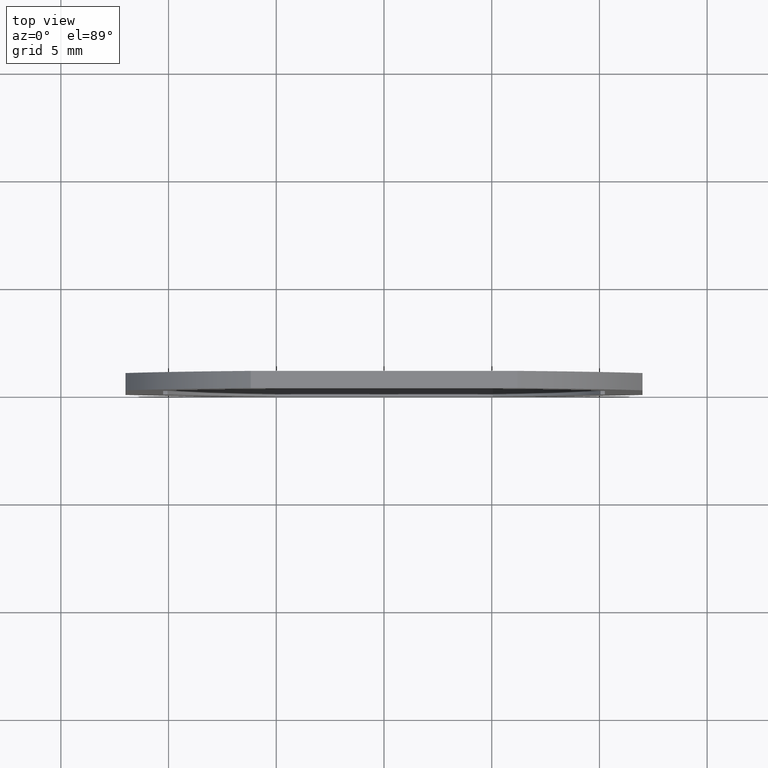
[diagram: clean part render]
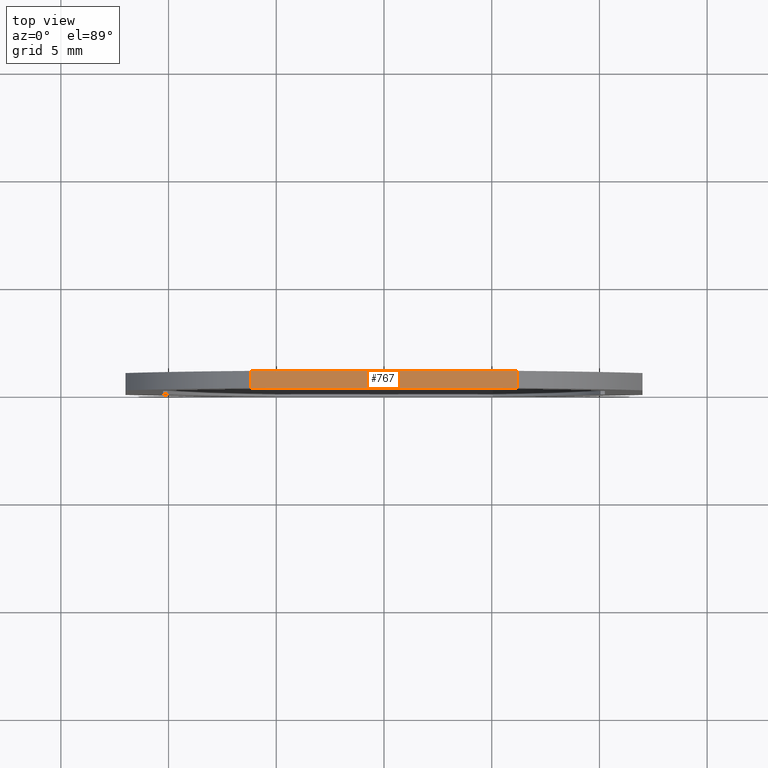
[diagram: same view with one face highlighted and labeled with its STEP entity id]
A machine part, top view. The second image highlights one B-rep face of the part: STEP entity #767.
In plain terms, the highlighted face is a freeform B-spline surface patch.
Its self-contained STEP definition (entity closure, byte-faithful):
#49=CARTESIAN_POINT('',(-6.184658732181810,0.0,12.000000569969499));
#50=VERTEX_POINT('',#49);
#51=CARTESIAN_POINT('',(6.184658732181830,0.0,12.000000569969499));
#52=VERTEX_POINT('',#51);
#53=CARTESIAN_POINT('',(-6.184658732181810,0.0,12.000000569969499));
#54=CARTESIAN_POINT('',(6.184658732181830,0.0,12.000000569969499));
#55=QUASI_UNIFORM_CURVE('',1,(#53,#54),.UNSPECIFIED.,.F.,.U.);
#56=EDGE_CURVE('',#50,#52,#55,.T.);
#319=CARTESIAN_POINT('',(-6.184658732181810,0.800000000000023,12.000000569969499));
#320=VERTEX_POINT('',#319);
#321=CARTESIAN_POINT('',(6.184658732181830,0.800000000000023,12.000000569969499));
#322=VERTEX_POINT('',#321);
#323=CARTESIAN_POINT('',(-6.184658732181810,0.800000000000023,12.000000569969499));
#324=CARTESIAN_POINT('',(6.184658732181830,0.800000000000023,12.000000569969499));
#325=QUASI_UNIFORM_CURVE('',1,(#323,#324),.UNSPECIFIED.,.F.,.U.);
#326=EDGE_CURVE('',#320,#322,#325,.T.);
#619=CARTESIAN_POINT('',(-6.184658732181810,0.800000000000023,12.000000569969499));
#620=CARTESIAN_POINT('',(-6.184658732181810,0.0,12.000000569969499));
#621=QUASI_UNIFORM_CURVE('',1,(#619,#620),.UNSPECIFIED.,.F.,.U.);
#622=EDGE_CURVE('',#320,#50,#621,.T.);
#748=CARTESIAN_POINT('',(6.184658732181830,0.800000000000023,12.000000569969499));
#749=CARTESIAN_POINT('',(6.184658732181830,0.0,12.000000569969499));
#750=QUASI_UNIFORM_CURVE('',1,(#748,#749),.UNSPECIFIED.,.F.,.U.);
#751=EDGE_CURVE('',#322,#52,#750,.T.);
#756=CARTESIAN_POINT('',(6.802505839132161,-0.039959998449446,12.000000569969520));
#757=CARTESIAN_POINT('',(-6.802505507361195,-0.039959998449446,12.000000569969520));
#758=CARTESIAN_POINT('',(6.802505839132161,0.839960019907141,12.000000569969520));
#759=CARTESIAN_POINT('',(-6.802505507361195,0.839960019907141,12.000000569969520));
#760=B_SPLINE_SURFACE_WITH_KNOTS('',1,1,((#756,#758),(#757,#759)),.UNSPECIFIED.,.F.,.F.,.U.,(2,2),(2,2),(0.0,13.605011346493360),(0.041708334948495,0.958291687403247),.UNSPECIFIED.);
#761=ORIENTED_EDGE('',*,*,#56,.T.);
#762=ORIENTED_EDGE('',*,*,#751,.F.);
#763=ORIENTED_EDGE('',*,*,#326,.F.);
#764=ORIENTED_EDGE('',*,*,#622,.T.);
#765=EDGE_LOOP('',(#761,#762,#763,#764));
#766=FACE_OUTER_BOUND('',#765,.T.);
#767=ADVANCED_FACE('',(#766),#760,.F.);